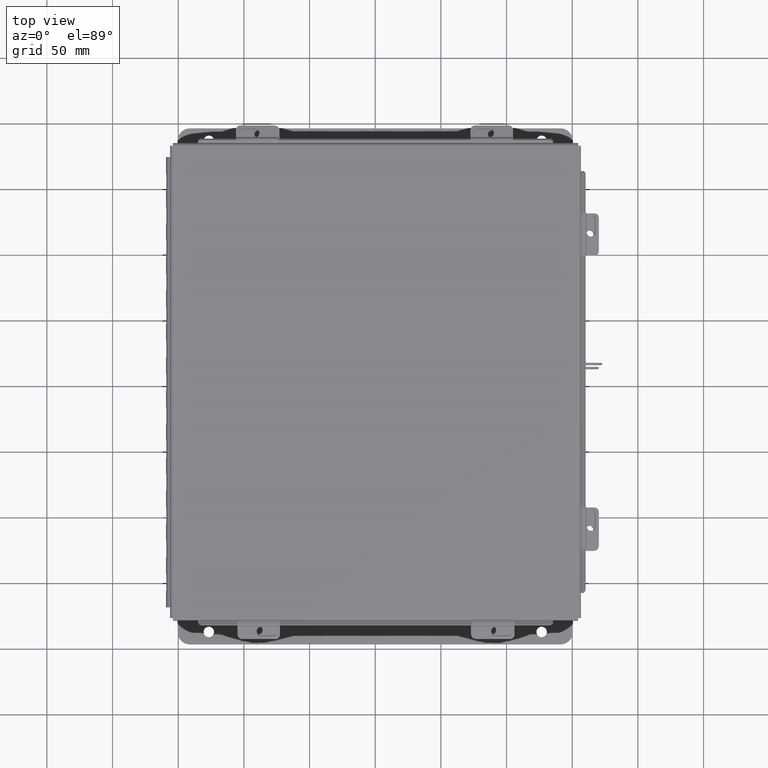
[diagram: clean part render]
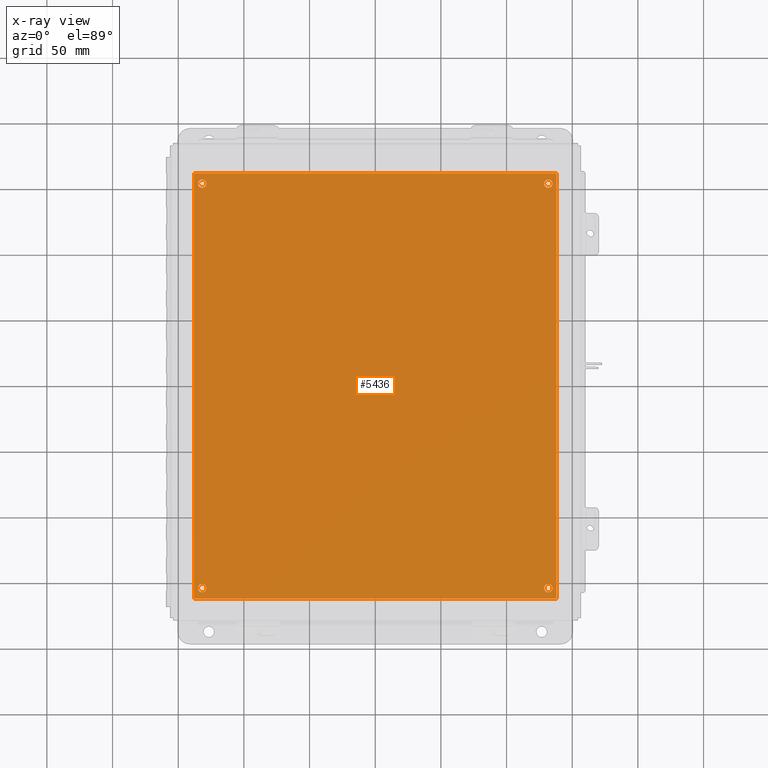
[diagram: x-ray — body ghosted, one internal face saturated and labeled with its STEP entity id]
A machine part, top view, then the same camera in x-ray: the body is ghosted and one INTERNAL B-rep face — a face not visible from any outside direction — is saturated and labeled: STEP entity #5436.
In plain terms, the highlighted planar face has unit normal (0, 0, -1).
Its self-contained STEP definition (entity closure, byte-faithful):
#74 = EDGE_LOOP ( 'NONE', ( #4144, #14314 ) ) ;
#234 = VECTOR ( 'NONE', #4882, 39.37007874015748100 ) ;
#291 = DIRECTION ( 'NONE',  ( -1.000000000000000000, 0.0000000000000000000, 0.0000000000000000000 ) ) ;
#632 = ORIENTED_EDGE ( 'NONE', *, *, #9635, .T. ) ;
#642 = DIRECTION ( 'NONE',  ( -1.000000000000000000, 0.0000000000000000000, 0.0000000000000000000 ) ) ;
#808 = CARTESIAN_POINT ( 'NONE',  ( 0.3749999999999999400, 12.43799999999999700, -0.07470000000000000300 ) ) ;
#856 = DIRECTION ( 'NONE',  ( -1.000000000000000000, 0.0000000000000000000, 0.0000000000000000000 ) ) ;
#1082 = VERTEX_POINT ( 'NONE', #5829 ) ;
#1196 = VECTOR ( 'NONE', #6454, 39.37007874015748100 ) ;
#1562 = VERTEX_POINT ( 'NONE', #4075 ) ;
#1774 = ORIENTED_EDGE ( 'NONE', *, *, #3823, .T. ) ;
#2263 = ORIENTED_EDGE ( 'NONE', *, *, #10065, .F. ) ;
#2338 = AXIS2_PLACEMENT_3D ( 'NONE', #2871, #12916, #4327 ) ;
#2734 = AXIS2_PLACEMENT_3D ( 'NONE', #17837, #9282, #642 ) ;
#2811 = VERTEX_POINT ( 'NONE', #7815 ) ;
#2871 = CARTESIAN_POINT ( 'NONE',  ( 0.2500000000000020000, 0.3120000000000015500, -0.07470000000000000300 ) ) ;
#2941 = EDGE_CURVE ( 'NONE', #13195, #5925, #13020, .T. ) ;
#3113 = CARTESIAN_POINT ( 'NONE',  ( 10.62500000000000400, 0.3120000000000038900, -0.07470000000000000300 ) ) ;
#3250 = CARTESIAN_POINT ( 'NONE',  ( 10.62500000000000200, 12.43799999999999900, -0.07470000000000000300 ) ) ;
#3428 = CARTESIAN_POINT ( 'NONE',  ( 0.0000000000000000000, 0.0000000000000000000, -0.07470000000000000300 ) ) ;
#3502 = EDGE_LOOP ( 'NONE', ( #632, #7287 ) ) ;
#3736 = EDGE_LOOP ( 'NONE', ( #1774, #12986 ) ) ;
#3804 = CIRCLE ( 'NONE', #13981, 0.1249999999999993500 ) ;
#3823 = EDGE_CURVE ( 'NONE', #18160, #13132, #18590, .T. ) ;
#3933 = AXIS2_PLACEMENT_3D ( 'NONE', #17502, #8937, #291 ) ;
#3976 = EDGE_LOOP ( 'NONE', ( #18069, #12823 ) ) ;
#4075 = CARTESIAN_POINT ( 'NONE',  ( 10.75000000000000400, 0.3120000000000038900, -0.07470000000000000300 ) ) ;
#4076 = CARTESIAN_POINT ( 'NONE',  ( 10.87500000000000000, 12.75000000000000000, -0.07470000000000000300 ) ) ;
#4127 = DIRECTION ( 'NONE',  ( -0.0000000000000000000, -0.0000000000000000000, 1.000000000000000000 ) ) ;
#4144 = ORIENTED_EDGE ( 'NONE', *, *, #7445, .T. ) ;
#4215 = VECTOR ( 'NONE', #8146, 39.37007874015748100 ) ;
#4276 = EDGE_CURVE ( 'NONE', #5925, #1082, #8039, .T. ) ;
#4327 = DIRECTION ( 'NONE',  ( -1.000000000000000000, 0.0000000000000000000, 0.0000000000000000000 ) ) ;
#4540 = DIRECTION ( 'NONE',  ( 0.0000000000000000000, 0.0000000000000000000, -1.000000000000000000 ) ) ;
#4577 = DIRECTION ( 'NONE',  ( -1.000000000000000000, 0.0000000000000000000, 0.0000000000000000000 ) ) ;
#4724 = DIRECTION ( 'NONE',  ( -1.000000000000000000, 0.0000000000000000000, 0.0000000000000000000 ) ) ;
#4882 = DIRECTION ( 'NONE',  ( 1.000000000000000000, 0.0000000000000000000, 0.0000000000000000000 ) ) ;
#4939 = ORIENTED_EDGE ( 'NONE', *, *, #2941, .F. ) ;
#5349 = AXIS2_PLACEMENT_3D ( 'NONE', #15898, #7353, #17353 ) ;
#5436 = ADVANCED_FACE ( 'NONE', ( #14505, #10714, #13626, #9826, #5993 ), #8809, .T. ) ;
#5829 = CARTESIAN_POINT ( 'NONE',  ( 0.0000000000000000000, 12.75000000000000000, -0.07470000000000000300 ) ) ;
#5867 = CARTESIAN_POINT ( 'NONE',  ( 0.0000000000000000000, 0.0000000000000000000, -0.07470000000000000300 ) ) ;
#5925 = VERTEX_POINT ( 'NONE', #4076 ) ;
#5970 = AXIS2_PLACEMENT_3D ( 'NONE', #7354, #4540, #14532 ) ;
#5993 = FACE_OUTER_BOUND ( 'NONE', #17239, .T. ) ;
#6454 = DIRECTION ( 'NONE',  ( -0.0000000000000000000, -1.000000000000000000, -0.0000000000000000000 ) ) ;
#7287 = ORIENTED_EDGE ( 'NONE', *, *, #11340, .T. ) ;
#7353 = DIRECTION ( 'NONE',  ( -0.0000000000000000000, -0.0000000000000000000, 1.000000000000000000 ) ) ;
#7354 = CARTESIAN_POINT ( 'NONE',  ( 0.0000000000000000000, 0.0000000000000000000, -0.07470000000000000300 ) ) ;
#7445 = EDGE_CURVE ( 'NONE', #15981, #2811, #13141, .T. ) ;
#7815 = CARTESIAN_POINT ( 'NONE',  ( 0.1249999999999999600, 12.43799999999999700, -0.07470000000000000300 ) ) ;
#8039 = LINE ( 'NONE', #13823, #4215 ) ;
#8146 = DIRECTION ( 'NONE',  ( -1.000000000000000000, -0.0000000000000000000, -0.0000000000000000000 ) ) ;
#8396 = ORIENTED_EDGE ( 'NONE', *, *, #4276, .F. ) ;
#8499 = EDGE_CURVE ( 'NONE', #1082, #8898, #12679, .T. ) ;
#8768 = VECTOR ( 'NONE', #11002, 39.37007874015748100 ) ;
#8809 = PLANE ( 'NONE',  #5970 ) ;
#8898 = VERTEX_POINT ( 'NONE', #5867 ) ;
#8937 = DIRECTION ( 'NONE',  ( -0.0000000000000000000, -0.0000000000000000000, 1.000000000000000000 ) ) ;
#9174 = AXIS2_PLACEMENT_3D ( 'NONE', #18062, #9500, #856 ) ;
#9282 = DIRECTION ( 'NONE',  ( -0.0000000000000000000, -0.0000000000000000000, 1.000000000000000000 ) ) ;
#9500 = DIRECTION ( 'NONE',  ( -0.0000000000000000000, -0.0000000000000000000, 1.000000000000000000 ) ) ;
#9635 = EDGE_CURVE ( 'NONE', #17042, #13732, #11280, .T. ) ;
#9826 = FACE_BOUND ( 'NONE', #74, .T. ) ;
#9936 = EDGE_CURVE ( 'NONE', #12441, #1562, #10146, .T. ) ;
#10065 = EDGE_CURVE ( 'NONE', #8898, #13195, #11703, .T. ) ;
#10146 = CIRCLE ( 'NONE', #13592, 0.1249999999999993500 ) ;
#10384 = CARTESIAN_POINT ( 'NONE',  ( 10.75000000000000200, 12.43799999999999900, -0.07470000000000000300 ) ) ;
#10714 = FACE_BOUND ( 'NONE', #3976, .T. ) ;
#10903 = CARTESIAN_POINT ( 'NONE',  ( 10.50000000000000400, 0.3120000000000038900, -0.07470000000000000300 ) ) ;
#11002 = DIRECTION ( 'NONE',  ( 0.0000000000000000000, 1.000000000000000000, 0.0000000000000000000 ) ) ;
#11153 = CIRCLE ( 'NONE', #2734, 0.1249999999999993500 ) ;
#11249 = EDGE_CURVE ( 'NONE', #13132, #18160, #12806, .T. ) ;
#11280 = CIRCLE ( 'NONE', #9174, 0.1249999999999993500 ) ;
#11340 = EDGE_CURVE ( 'NONE', #13732, #17042, #3804, .T. ) ;
#11703 = LINE ( 'NONE', #3428, #234 ) ;
#12033 = CIRCLE ( 'NONE', #3933, 0.1250000000000000000 ) ;
#12441 = VERTEX_POINT ( 'NONE', #10903 ) ;
#12507 = CARTESIAN_POINT ( 'NONE',  ( 10.50000000000000200, 12.43799999999999900, -0.07470000000000000300 ) ) ;
#12679 = LINE ( 'NONE', #13589, #1196 ) ;
#12734 = CARTESIAN_POINT ( 'NONE',  ( 0.2499999999999999700, 12.43799999999999700, -0.07470000000000000300 ) ) ;
#12806 = CIRCLE ( 'NONE', #5349, 0.1250000000000000600 ) ;
#12823 = ORIENTED_EDGE ( 'NONE', *, *, #9936, .T. ) ;
#12916 = DIRECTION ( 'NONE',  ( -0.0000000000000000000, -0.0000000000000000000, 1.000000000000000000 ) ) ;
#12986 = ORIENTED_EDGE ( 'NONE', *, *, #11249, .T. ) ;
#13020 = LINE ( 'NONE', #18149, #8768 ) ;
#13132 = VERTEX_POINT ( 'NONE', #14014 ) ;
#13141 = CIRCLE ( 'NONE', #13703, 0.1250000000000000000 ) ;
#13150 = DIRECTION ( 'NONE',  ( -0.0000000000000000000, -0.0000000000000000000, 1.000000000000000000 ) ) ;
#13195 = VERTEX_POINT ( 'NONE', #14201 ) ;
#13301 = DIRECTION ( 'NONE',  ( -0.0000000000000000000, -0.0000000000000000000, 1.000000000000000000 ) ) ;
#13554 = CARTESIAN_POINT ( 'NONE',  ( 0.3750000000000020000, 0.3120000000000015500, -0.07470000000000000300 ) ) ;
#13589 = CARTESIAN_POINT ( 'NONE',  ( 0.0000000000000000000, 0.0000000000000000000, -0.07470000000000000300 ) ) ;
#13592 = AXIS2_PLACEMENT_3D ( 'NONE', #3113, #13150, #4577 ) ;
#13626 = FACE_BOUND ( 'NONE', #3502, .T. ) ;
#13703 = AXIS2_PLACEMENT_3D ( 'NONE', #12734, #4127, #14156 ) ;
#13732 = VERTEX_POINT ( 'NONE', #12507 ) ;
#13823 = CARTESIAN_POINT ( 'NONE',  ( 0.0000000000000000000, 12.75000000000000000, -0.07470000000000000300 ) ) ;
#13981 = AXIS2_PLACEMENT_3D ( 'NONE', #3250, #13301, #4724 ) ;
#14014 = CARTESIAN_POINT ( 'NONE',  ( 0.1250000000000019200, 0.3120000000000015500, -0.07470000000000000300 ) ) ;
#14156 = DIRECTION ( 'NONE',  ( -1.000000000000000000, 0.0000000000000000000, 0.0000000000000000000 ) ) ;
#14201 = CARTESIAN_POINT ( 'NONE',  ( 10.87500000000000000, 0.0000000000000000000, -0.07470000000000000300 ) ) ;
#14314 = ORIENTED_EDGE ( 'NONE', *, *, #17659, .T. ) ;
#14505 = FACE_BOUND ( 'NONE', #3736, .T. ) ;
#14532 = DIRECTION ( 'NONE',  ( -1.000000000000000000, 0.0000000000000000000, -0.0000000000000000000 ) ) ;
#15898 = CARTESIAN_POINT ( 'NONE',  ( 0.2500000000000020000, 0.3120000000000015500, -0.07470000000000000300 ) ) ;
#15981 = VERTEX_POINT ( 'NONE', #808 ) ;
#17042 = VERTEX_POINT ( 'NONE', #10384 ) ;
#17152 = EDGE_CURVE ( 'NONE', #1562, #12441, #11153, .T. ) ;
#17239 = EDGE_LOOP ( 'NONE', ( #18195, #8396, #4939, #2263 ) ) ;
#17353 = DIRECTION ( 'NONE',  ( -1.000000000000000000, 0.0000000000000000000, 0.0000000000000000000 ) ) ;
#17502 = CARTESIAN_POINT ( 'NONE',  ( 0.2499999999999999700, 12.43799999999999700, -0.07470000000000000300 ) ) ;
#17659 = EDGE_CURVE ( 'NONE', #2811, #15981, #12033, .T. ) ;
#17837 = CARTESIAN_POINT ( 'NONE',  ( 10.62500000000000400, 0.3120000000000038900, -0.07470000000000000300 ) ) ;
#18062 = CARTESIAN_POINT ( 'NONE',  ( 10.62500000000000200, 12.43799999999999900, -0.07470000000000000300 ) ) ;
#18069 = ORIENTED_EDGE ( 'NONE', *, *, #17152, .T. ) ;
#18149 = CARTESIAN_POINT ( 'NONE',  ( 10.87500000000000000, 0.0000000000000000000, -0.07470000000000000300 ) ) ;
#18160 = VERTEX_POINT ( 'NONE', #13554 ) ;
#18195 = ORIENTED_EDGE ( 'NONE', *, *, #8499, .F. ) ;
#18590 = CIRCLE ( 'NONE', #2338, 0.1250000000000000600 ) ;